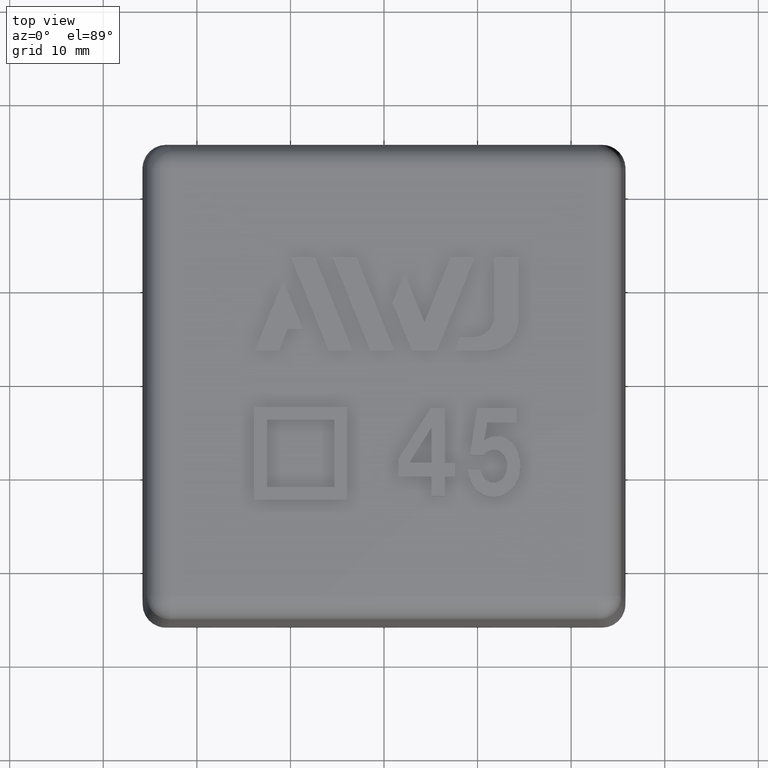
[diagram: clean part render]
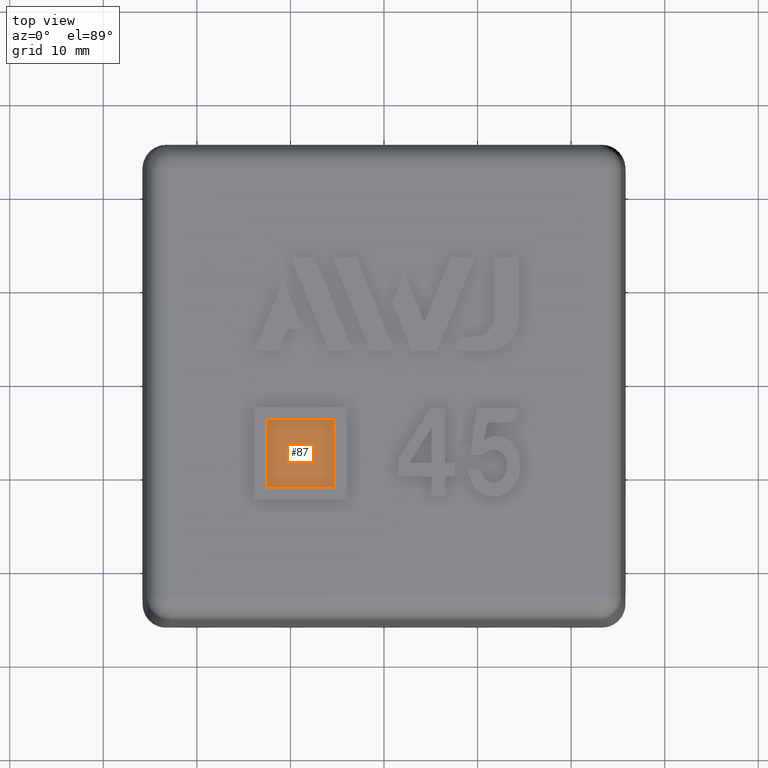
[diagram: same view with one face highlighted and labeled with its STEP entity id]
A machine part, top view. The second image highlights one B-rep face of the part: STEP entity #87.
In plain terms, the highlighted planar face has unit normal (0, 0, 1).
Its self-contained STEP definition (entity closure, byte-faithful):
#87 = ADVANCED_FACE( '', ( #202 ), #203, .T. );
#202 = FACE_OUTER_BOUND( '', #401, .T. );
#203 = PLANE( '', #402 );
#401 = EDGE_LOOP( '', ( #724, #725, #726, #727 ) );
#402 = AXIS2_PLACEMENT_3D( '', #728, #729, #730 );
#724 = ORIENTED_EDGE( '', *, *, #1415, .T. );
#725 = ORIENTED_EDGE( '', *, *, #1416, .T. );
#726 = ORIENTED_EDGE( '', *, *, #1417, .T. );
#727 = ORIENTED_EDGE( '', *, *, #1418, .T. );
#728 = CARTESIAN_POINT( '', ( -25.8000000000000, -25.8000000000000, 27.5000000000000 ) );
#729 = DIRECTION( '', ( 0.000000000000000, 0.000000000000000, 1.00000000000000 ) );
#730 = DIRECTION( '', ( 0.000000000000000, -1.00000000000000, 0.000000000000000 ) );
#1415 = EDGE_CURVE( '', #1725, #1726, #1727, .T. );
#1416 = EDGE_CURVE( '', #1726, #1728, #1729, .T. );
#1417 = EDGE_CURVE( '', #1728, #1730, #1731, .T. );
#1418 = EDGE_CURVE( '', #1730, #1725, #1732, .T. );
#1725 = VERTEX_POINT( '', #2265 );
#1726 = VERTEX_POINT( '', #2266 );
#1727 = B_SPLINE_CURVE_WITH_KNOTS( '', 2, ( #2267, #2268, #2269 ), .UNSPECIFIED., .F., .F., ( 3, 3 ), ( 3.00000000000000, 4.00000000000000 ), .UNSPECIFIED. );
#1728 = VERTEX_POINT( '', #2270 );
#1729 = B_SPLINE_CURVE_WITH_KNOTS( '', 2, ( #2271, #2272, #2273 ), .UNSPECIFIED., .F., .F., ( 3, 3 ), ( 0.000000000000000, 1.00000000000000 ), .UNSPECIFIED. );
#1730 = VERTEX_POINT( '', #2274 );
#1731 = B_SPLINE_CURVE_WITH_KNOTS( '', 2, ( #2275, #2276, #2277 ), .UNSPECIFIED., .F., .F., ( 3, 3 ), ( 1.00000000000000, 2.00000000000000 ), .UNSPECIFIED. );
#1732 = B_SPLINE_CURVE_WITH_KNOTS( '', 2, ( #2278, #2279, #2280 ), .UNSPECIFIED., .F., .F., ( 3, 3 ), ( 2.00000000000000, 3.00000000000000 ), .UNSPECIFIED. );
#2265 = CARTESIAN_POINT( '', ( -12.5310261363637, -4.03173636363639, 27.5000000000000 ) );
#2266 = CARTESIAN_POINT( '', ( -12.5310261363637, -11.2590090909091, 27.5000000000000 ) );
#2267 = CARTESIAN_POINT( '', ( -12.5310261363637, -4.03173636363639, 27.5000000000000 ) );
#2268 = CARTESIAN_POINT( '', ( -12.5310261363637, -7.64537272727274, 27.5000000000000 ) );
#2269 = CARTESIAN_POINT( '', ( -12.5310261363637, -11.2590090909091, 27.5000000000000 ) );
#2270 = CARTESIAN_POINT( '', ( -5.30375340909097, -11.2590090909091, 27.5000000000000 ) );
#2271 = CARTESIAN_POINT( '', ( -12.5310261363637, -11.2590090909091, 27.5000000000000 ) );
#2272 = CARTESIAN_POINT( '', ( -8.91738977272732, -11.2590090909091, 27.5000000000000 ) );
#2273 = CARTESIAN_POINT( '', ( -5.30375340909097, -11.2590090909091, 27.5000000000000 ) );
#2274 = CARTESIAN_POINT( '', ( -5.30375340909097, -4.03173636363639, 27.5000000000000 ) );
#2275 = CARTESIAN_POINT( '', ( -5.30375340909097, -11.2590090909091, 27.5000000000000 ) );
#2276 = CARTESIAN_POINT( '', ( -5.30375340909097, -7.64537272727274, 27.5000000000000 ) );
#2277 = CARTESIAN_POINT( '', ( -5.30375340909097, -4.03173636363639, 27.5000000000000 ) );
#2278 = CARTESIAN_POINT( '', ( -5.30375340909097, -4.03173636363639, 27.5000000000000 ) );
#2279 = CARTESIAN_POINT( '', ( -8.91738977272732, -4.03173636363639, 27.5000000000000 ) );
#2280 = CARTESIAN_POINT( '', ( -12.5310261363637, -4.03173636363639, 27.5000000000000 ) );